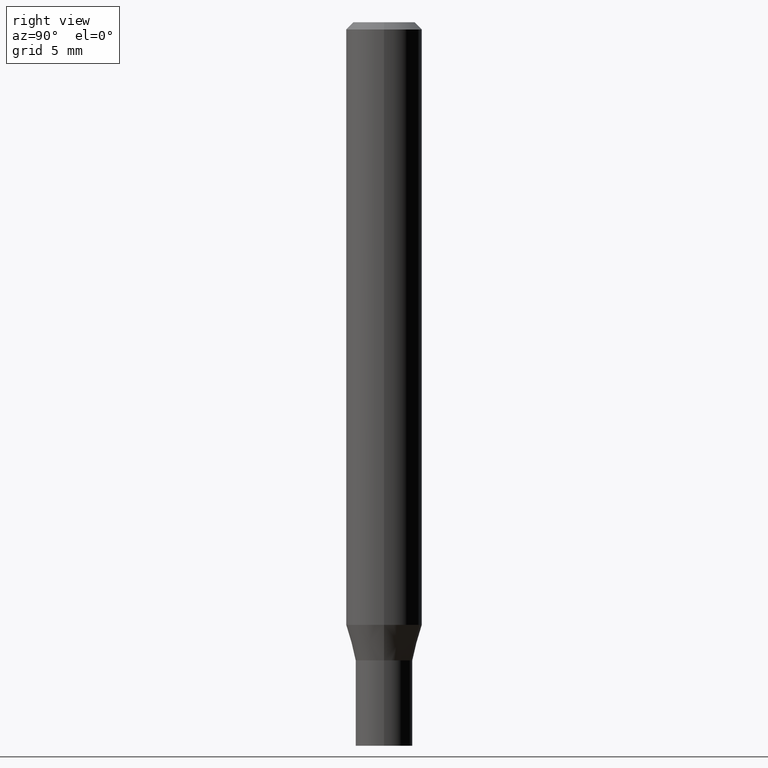
[diagram: clean part render]
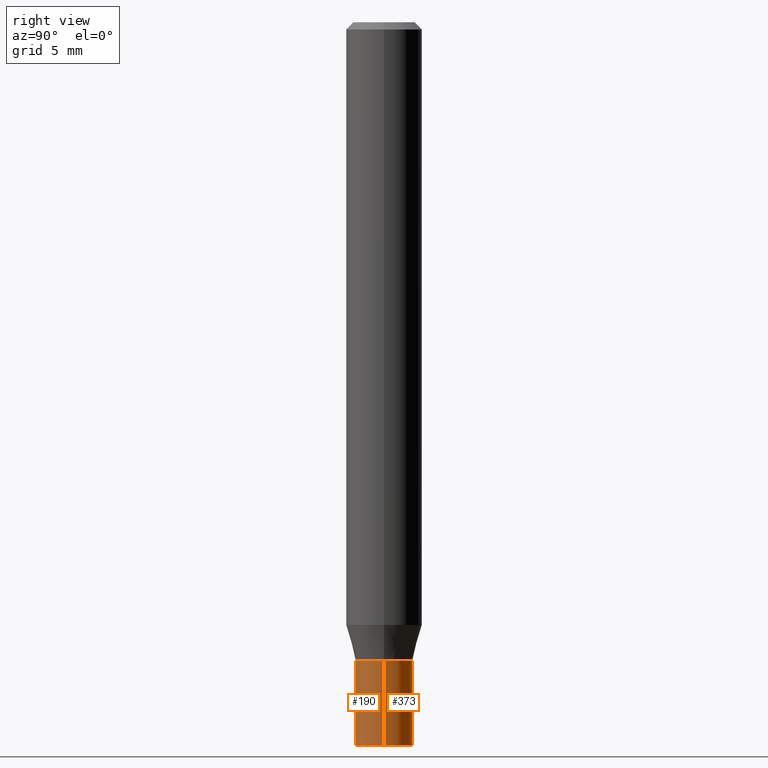
[diagram: same view with one multi-face feature highlighted, each face labeled with its STEP entity id]
A machine part, right view. The highlighted faces form ONE feature: a constant-radius fillet chain: 2 tangent blend faces with common blend radius 1.4999 mm. The faces share edges in the B-rep.
Their STEP definitions:
[1] entity #190 (Cylinder):
#4 = CARTESIAN_POINT ( 'NONE',  ( 0.000000000000000000, 0.000000000000000000, 0.000000000000000000 ) ) ;
#21 = EDGE_CURVE ( 'NONE', #227, #198, #353, .T. ) ;
#22 = DIRECTION ( 'NONE',  ( -2.445468806185136597E-29, 3.491481338843145583E-15, 1.000000000000000000 ) ) ;
#46 = DIRECTION ( 'NONE',  ( 1.000000000000000000, -6.982962677686266711E-15, 4.876176775795936353E-29 ) ) ;
#53 = VERTEX_POINT ( 'NONE', #327 ) ;
#59 = CARTESIAN_POINT ( 'NONE',  ( 3.234866136821698561E-29, -4.618531515021712857E-15, -1.322800000000000198 ) ) ;
#73 = FACE_OUTER_BOUND ( 'NONE', #439, .T. ) ;
#76 = DIRECTION ( 'NONE',  ( -2.445468806185136877E-29, 3.491481338843145188E-15, 1.000000000000000000 ) ) ;
#97 = ORIENTED_EDGE ( 'NONE', *, *, #249, .F. ) ;
#101 = VERTEX_POINT ( 'NONE', #261 ) ;
#104 = ORIENTED_EDGE ( 'NONE', *, *, #317, .F. ) ;
#108 = LINE ( 'NONE', #259, #435 ) ;
#124 = DIRECTION ( 'NONE',  ( 1.000000000000000000, -6.982962677686273021E-15, 0.000000000000000000 ) ) ;
#154 = CARTESIAN_POINT ( 'NONE',  ( 3.668203209277704895E-29, -5.237222008264718177E-15, -1.500000000000000222 ) ) ;
#182 = ORIENTED_EDGE ( 'NONE', *, *, #21, .T. ) ;
#190 = ADVANCED_FACE ( 'NONE', ( #73 ), #207, .T. ) ;
#198 = VERTEX_POINT ( 'NONE', #224 ) ;
#207 = CYLINDRICAL_SURFACE ( 'NONE', #358, 0.05904999999999999832 ) ;
#213 = LINE ( 'NONE', #325, #234 ) ;
#224 = CARTESIAN_POINT ( 'NONE',  ( 0.05904999999999999832, -5.649565954382093097E-15, -1.500000000000000222 ) ) ;
#227 = VERTEX_POINT ( 'NONE', #399 ) ;
#234 = VECTOR ( 'NONE', #396, 39.37007874015748143 ) ;
#243 = EDGE_CURVE ( 'NONE', #198, #101, #108, .T. ) ;
#245 = AXIS2_PLACEMENT_3D ( 'NONE', #154, #22, #300 ) ;
#249 = EDGE_CURVE ( 'NONE', #227, #53, #213, .T. ) ;
#259 = CARTESIAN_POINT ( 'NONE',  ( 0.05904999999999999832, -4.123439461173740327E-16, 2.879382386107500220E-30 ) ) ;
#261 = CARTESIAN_POINT ( 'NONE',  ( 0.05904999999999999832, -5.030875461139087777E-15, -1.322800000000000198 ) ) ;
#300 = DIRECTION ( 'NONE',  ( 1.000000000000000000, -6.982962677686273021E-15, 0.000000000000000000 ) ) ;
#313 = CIRCLE ( 'NONE', #360, 0.05904999999999999832 ) ;
#317 = EDGE_CURVE ( 'NONE', #53, #101, #313, .T. ) ;
#320 = ORIENTED_EDGE ( 'NONE', *, *, #243, .T. ) ;
#325 = CARTESIAN_POINT ( 'NONE',  ( -0.05904999999999999832, 4.195754854663391478E-16, -2.904631170795521892E-30 ) ) ;
#327 = CARTESIAN_POINT ( 'NONE',  ( -0.05904999999999999832, -4.508301276176876418E-15, -1.322800000000000198 ) ) ;
#353 = CIRCLE ( 'NONE', #245, 0.05904999999999999832 ) ;
#358 = AXIS2_PLACEMENT_3D ( 'NONE', #4, #446, #46 ) ;
#360 = AXIS2_PLACEMENT_3D ( 'NONE', #59, #449, #124 ) ;
#396 = DIRECTION ( 'NONE',  ( -2.445468806185136877E-29, 3.491481338843145188E-15, 1.000000000000000000 ) ) ;
#399 = CARTESIAN_POINT ( 'NONE',  ( -0.05904999999999999832, -4.508301276176876418E-15, -1.500000000000000222 ) ) ;
#435 = VECTOR ( 'NONE', #76, 39.37007874015748143 ) ;
#439 = EDGE_LOOP ( 'NONE', ( #97, #182, #320, #104 ) ) ;
#446 = DIRECTION ( 'NONE',  ( -2.445468806185136597E-29, 3.491481338843145583E-15, 1.000000000000000000 ) ) ;
#449 = DIRECTION ( 'NONE',  ( -2.445468806185136597E-29, 3.491481338843145583E-15, 1.000000000000000000 ) ) ;
[2] entity #373 (Cylinder):
#1 = AXIS2_PLACEMENT_3D ( 'NONE', #93, #374, #340 ) ;
#6 = DIRECTION ( 'NONE',  ( -2.445468806185136597E-29, 3.491481338843145583E-15, 1.000000000000000000 ) ) ;
#16 = CARTESIAN_POINT ( 'NONE',  ( 3.668203209277704895E-29, -5.237222008264718177E-15, -1.500000000000000222 ) ) ;
#37 = ORIENTED_EDGE ( 'NONE', *, *, #249, .T. ) ;
#53 = VERTEX_POINT ( 'NONE', #327 ) ;
#71 = EDGE_CURVE ( 'NONE', #101, #53, #208, .T. ) ;
#76 = DIRECTION ( 'NONE',  ( -2.445468806185136877E-29, 3.491481338843145188E-15, 1.000000000000000000 ) ) ;
#83 = CARTESIAN_POINT ( 'NONE',  ( 3.234866136821698561E-29, -4.618531515021712857E-15, -1.322800000000000198 ) ) ;
#93 = CARTESIAN_POINT ( 'NONE',  ( 0.000000000000000000, 0.000000000000000000, 0.000000000000000000 ) ) ;
#101 = VERTEX_POINT ( 'NONE', #261 ) ;
#108 = LINE ( 'NONE', #259, #435 ) ;
#131 = FACE_OUTER_BOUND ( 'NONE', #244, .T. ) ;
#188 = DIRECTION ( 'NONE',  ( -2.445468806185136597E-29, 3.491481338843145583E-15, 1.000000000000000000 ) ) ;
#195 = CYLINDRICAL_SURFACE ( 'NONE', #1, 0.05904999999999999832 ) ;
#198 = VERTEX_POINT ( 'NONE', #224 ) ;
#200 = EDGE_CURVE ( 'NONE', #198, #227, #201, .T. ) ;
#201 = CIRCLE ( 'NONE', #204, 0.05904999999999999832 ) ;
#204 = AXIS2_PLACEMENT_3D ( 'NONE', #16, #188, #215 ) ;
#206 = ORIENTED_EDGE ( 'NONE', *, *, #243, .F. ) ;
#208 = CIRCLE ( 'NONE', #279, 0.05904999999999999832 ) ;
#213 = LINE ( 'NONE', #325, #234 ) ;
#215 = DIRECTION ( 'NONE',  ( 1.000000000000000000, -6.982962677686273021E-15, 0.000000000000000000 ) ) ;
#224 = CARTESIAN_POINT ( 'NONE',  ( 0.05904999999999999832, -5.649565954382093097E-15, -1.500000000000000222 ) ) ;
#227 = VERTEX_POINT ( 'NONE', #399 ) ;
#234 = VECTOR ( 'NONE', #396, 39.37007874015748143 ) ;
#243 = EDGE_CURVE ( 'NONE', #198, #101, #108, .T. ) ;
#244 = EDGE_LOOP ( 'NONE', ( #391, #37, #254, #206 ) ) ;
#249 = EDGE_CURVE ( 'NONE', #227, #53, #213, .T. ) ;
#254 = ORIENTED_EDGE ( 'NONE', *, *, #71, .F. ) ;
#259 = CARTESIAN_POINT ( 'NONE',  ( 0.05904999999999999832, -4.123439461173740327E-16, 2.879382386107500220E-30 ) ) ;
#261 = CARTESIAN_POINT ( 'NONE',  ( 0.05904999999999999832, -5.030875461139087777E-15, -1.322800000000000198 ) ) ;
#279 = AXIS2_PLACEMENT_3D ( 'NONE', #83, #6, #437 ) ;
#325 = CARTESIAN_POINT ( 'NONE',  ( -0.05904999999999999832, 4.195754854663391478E-16, -2.904631170795521892E-30 ) ) ;
#327 = CARTESIAN_POINT ( 'NONE',  ( -0.05904999999999999832, -4.508301276176876418E-15, -1.322800000000000198 ) ) ;
#340 = DIRECTION ( 'NONE',  ( 1.000000000000000000, -6.982962677686266711E-15, 4.876176775795936353E-29 ) ) ;
#373 = ADVANCED_FACE ( 'NONE', ( #131 ), #195, .T. ) ;
#374 = DIRECTION ( 'NONE',  ( -2.445468806185136597E-29, 3.491481338843145583E-15, 1.000000000000000000 ) ) ;
#391 = ORIENTED_EDGE ( 'NONE', *, *, #200, .T. ) ;
#396 = DIRECTION ( 'NONE',  ( -2.445468806185136877E-29, 3.491481338843145188E-15, 1.000000000000000000 ) ) ;
#399 = CARTESIAN_POINT ( 'NONE',  ( -0.05904999999999999832, -4.508301276176876418E-15, -1.500000000000000222 ) ) ;
#435 = VECTOR ( 'NONE', #76, 39.37007874015748143 ) ;
#437 = DIRECTION ( 'NONE',  ( 1.000000000000000000, -6.982962677686273021E-15, 0.000000000000000000 ) ) ;